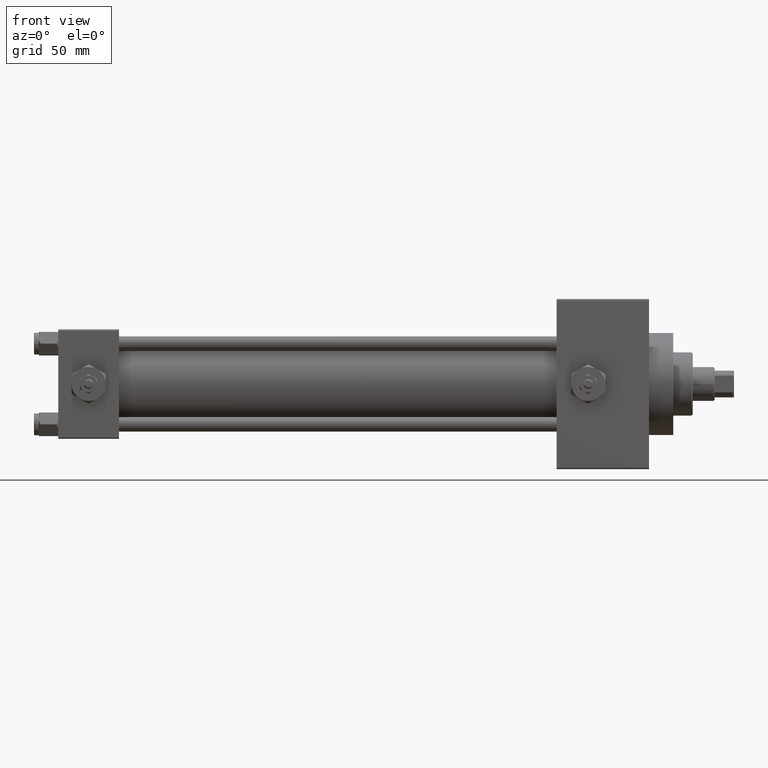
[diagram: clean part render]
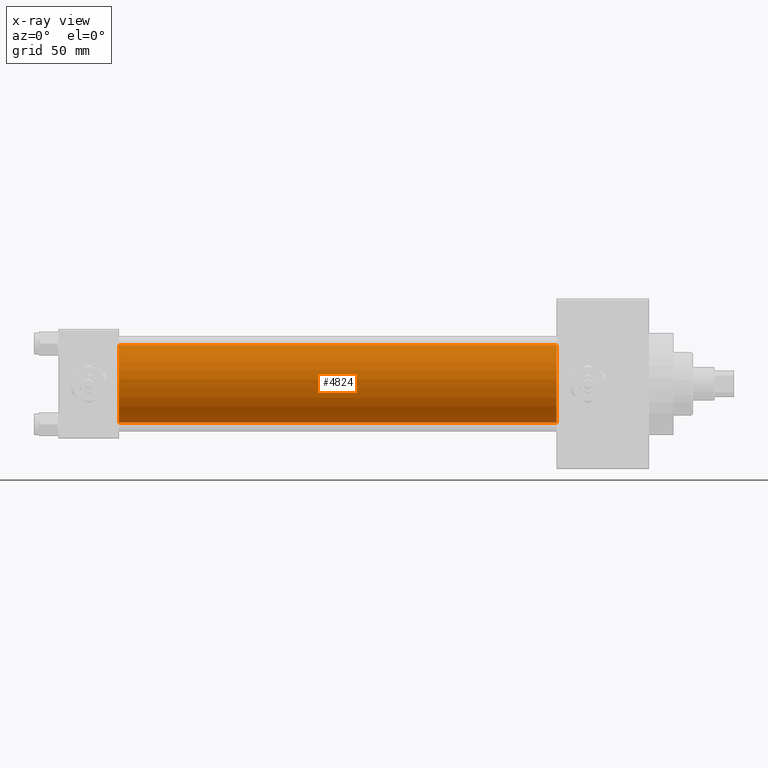
[diagram: x-ray — body ghosted, one internal face saturated and labeled with its STEP entity id]
A machine part, front view, then the same camera in x-ray: the body is ghosted and one INTERNAL B-rep face — a face not visible from any outside direction — is saturated and labeled: STEP entity #4824.
In plain terms, the highlighted cylindrical surface (partial cylindrical patch) has radius 16 mm, axis along (-1, -0, -0).
Its self-contained STEP definition (entity closure, byte-faithful):
#1541 = CARTESIAN_POINT ( 'NONE',  ( 205.0000000000000000, -6.426503353294460032E-16, -16.00000000000000000 ) ) ;
#1905 = ORIENTED_EDGE ( 'NONE', *, *, #14860, .F. ) ;
#2584 = VECTOR ( 'NONE', #16688, 1000.000000000000000 ) ;
#3418 = CARTESIAN_POINT ( 'NONE',  ( 205.0000000000000000, -2.602085213965210642E-15, 16.00000000000000000 ) ) ;
#4038 = ORIENTED_EDGE ( 'NONE', *, *, #29345, .T. ) ;
#4165 = AXIS2_PLACEMENT_3D ( 'NONE', #29164, #20730, #13045 ) ;
#4323 = CARTESIAN_POINT ( 'NONE',  ( 205.0000000000000000, -2.602085213965210642E-15, 0.000000000000000000 ) ) ;
#4824 = ADVANCED_FACE ( 'NONE', ( #14203 ), #24387, .F. ) ;
#7485 = LINE ( 'NONE', #33543, #23847 ) ;
#8560 = EDGE_LOOP ( 'NONE', ( #4038, #36998, #26738, #1905 ) ) ;
#9461 = DIRECTION ( 'NONE',  ( 0.000000000000000000, 0.000000000000000000, -1.000000000000000000 ) ) ;
#13045 = DIRECTION ( 'NONE',  ( 0.000000000000000000, 0.000000000000000000, -1.000000000000000000 ) ) ;
#14203 = FACE_OUTER_BOUND ( 'NONE', #8560, .T. ) ;
#14633 = CARTESIAN_POINT ( 'NONE',  ( 25.00000000000000000, -2.602085213965210642E-15, 16.00000000000000000 ) ) ;
#14860 = EDGE_CURVE ( 'NONE', #34806, #30258, #7485, .T. ) ;
#15986 = DIRECTION ( 'NONE',  ( 1.000000000000000000, 0.000000000000000000, 0.000000000000000000 ) ) ;
#16688 = DIRECTION ( 'NONE',  ( -1.000000000000000000, -0.000000000000000000, -0.000000000000000000 ) ) ;
#16793 = CIRCLE ( 'NONE', #23158, 16.00000000000000000 ) ;
#16927 = DIRECTION ( 'NONE',  ( 0.000000000000000000, 0.000000000000000000, 1.000000000000000000 ) ) ;
#17175 = CARTESIAN_POINT ( 'NONE',  ( 205.0000000000000000, -2.602085213965210642E-15, 0.000000000000000000 ) ) ;
#20730 = DIRECTION ( 'NONE',  ( 1.000000000000000000, 0.000000000000000000, 0.000000000000000000 ) ) ;
#21951 = AXIS2_PLACEMENT_3D ( 'NONE', #17175, #39512, #16927 ) ;
#22075 = EDGE_CURVE ( 'NONE', #30258, #26573, #25583, .T. ) ;
#22876 = DIRECTION ( 'NONE',  ( -1.000000000000000000, -0.000000000000000000, -0.000000000000000000 ) ) ;
#23158 = AXIS2_PLACEMENT_3D ( 'NONE', #4323, #15986, #9461 ) ;
#23847 = VECTOR ( 'NONE', #22876, 1000.000000000000000 ) ;
#24387 = CYLINDRICAL_SURFACE ( 'NONE', #21951, 16.00000000000000000 ) ;
#24949 = CARTESIAN_POINT ( 'NONE',  ( 25.00000000000000000, -6.426503353294460032E-16, -16.00000000000000000 ) ) ;
#25583 = CIRCLE ( 'NONE', #4165, 16.00000000000000000 ) ;
#26573 = VERTEX_POINT ( 'NONE', #24949 ) ;
#26738 = ORIENTED_EDGE ( 'NONE', *, *, #22075, .F. ) ;
#29164 = CARTESIAN_POINT ( 'NONE',  ( 25.00000000000000000, -2.602085213965210642E-15, 0.000000000000000000 ) ) ;
#29345 = EDGE_CURVE ( 'NONE', #34806, #40083, #16793, .T. ) ;
#29949 = CARTESIAN_POINT ( 'NONE',  ( 205.0000000000000000, -6.426503353294460032E-16, -16.00000000000000000 ) ) ;
#30258 = VERTEX_POINT ( 'NONE', #14633 ) ;
#30681 = EDGE_CURVE ( 'NONE', #40083, #26573, #34885, .T. ) ;
#33543 = CARTESIAN_POINT ( 'NONE',  ( 205.0000000000000000, -2.602085213965210642E-15, 16.00000000000000000 ) ) ;
#34806 = VERTEX_POINT ( 'NONE', #3418 ) ;
#34885 = LINE ( 'NONE', #1541, #2584 ) ;
#36998 = ORIENTED_EDGE ( 'NONE', *, *, #30681, .T. ) ;
#39512 = DIRECTION ( 'NONE',  ( -1.000000000000000000, -0.000000000000000000, -0.000000000000000000 ) ) ;
#40083 = VERTEX_POINT ( 'NONE', #29949 ) ;